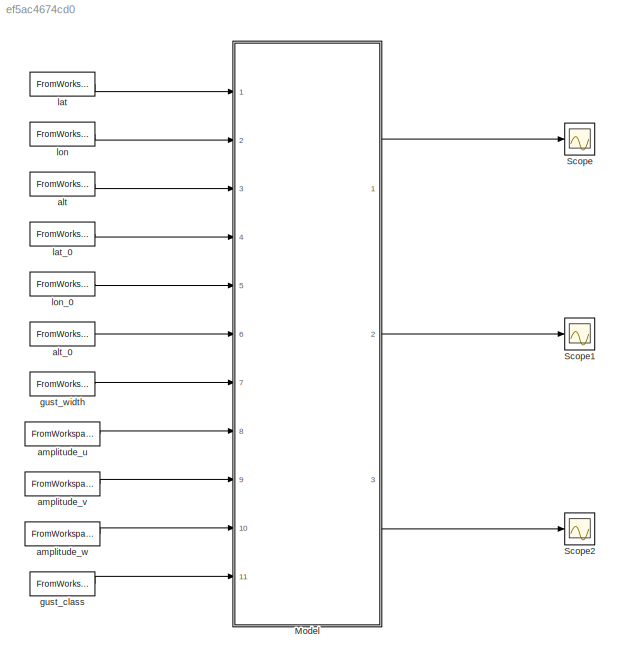
MODEL slx_ef5ac4674cd0
KIND model
BLOCK [ModelReference] Model
  ModelNameDialog = model_knigge.slx
  ModelReferenceVersion = 1.54
  Ports = [11, 3]
BLOCK [Scope] Scope
  Floating = off
  NumInputPorts = 1
  Ports = [1]
  ScopeSpecificationString = Simulink.scopes.TimeScopeBlockCfg('CurrentConfiguration', extmgr.ConfigurationSet(extmgr.Configuration('Core','General UI',true),extmgr.Configuration('Core','Source UI',true),extmgr.Configuration('Sources','WiredSimulink',true),extmgr.Configuration('Visuals','Time Domain',true,'SerializedDisplays',{struct('MinYLimReal','-1.22856','MaxYLimReal','11.05705','YLabelReal','','MinYLimMag','0.00000','Max...<+1346ch>
BLOCK [Scope] Scope1
  Floating = off
  NumInputPorts = 1
  Ports = [1]
  ScopeSpecificationString = Simulink.scopes.TimeScopeBlockCfg('CurrentConfiguration', extmgr.ConfigurationSet(extmgr.Configuration('Core','General UI',true),extmgr.Configuration('Core','Source UI',true),extmgr.Configuration('Sources','WiredSimulink',true,'DataLoggingVariableName','ScopeData1'),extmgr.Configuration('Visuals','Time Domain',true,'SerializedDisplays',{struct('MinYLimReal','-1.22856','MaxYLimReal','11.05705','YLa...<+1385ch>
BLOCK [Scope] Scope2
  Floating = off
  NumInputPorts = 1
  Ports = [1]
  ScopeSpecificationString = Simulink.scopes.TimeScopeBlockCfg('CurrentConfiguration', extmgr.ConfigurationSet(extmgr.Configuration('Core','General UI',true),extmgr.Configuration('Core','Source UI',true),extmgr.Configuration('Sources','WiredSimulink',true,'DataLoggingVariableName','ScopeData2'),extmgr.Configuration('Visuals','Time Domain',true,'SerializedDisplays',{struct('MinYLimReal','-1.23118','MaxYLimReal','11.08061','YLa...<+1385ch>
BLOCK [FromWorkspace] alt
  VariableName = alt
BLOCK [FromWorkspace] alt_0
  VariableName = alt_0
BLOCK [FromWorkspace] amplitude_u
  VariableName = amplitude_u
BLOCK [FromWorkspace] amplitude_v
  VariableName = amplitude_v
BLOCK [FromWorkspace] amplitude_w
  VariableName = amplitude_w
BLOCK [FromWorkspace] gust_class
  VariableName = gust_class
BLOCK [FromWorkspace] gust_width
  VariableName = gust_width
BLOCK [FromWorkspace] lat
  VariableName = lat
BLOCK [FromWorkspace] lat_0
  VariableName = lat_0
BLOCK [FromWorkspace] lon
  VariableName = lon
BLOCK [FromWorkspace] lon_0
  VariableName = lon_0
LINE Model:1 -> Scope:1
LINE Model:2 -> Scope1:1
LINE Model:3 -> Scope2:1
LINE alt:1 -> Model:3
LINE alt_0:1 -> Model:6
LINE amplitude_u:1 -> Model:8
LINE amplitude_v:1 -> Model:9
LINE amplitude_w:1 -> Model:10
LINE gust_class:1 -> Model:11
LINE gust_width:1 -> Model:7
LINE lat:1 -> Model:1
LINE lat_0:1 -> Model:4
LINE lon:1 -> Model:2
LINE lon_0:1 -> Model:5
